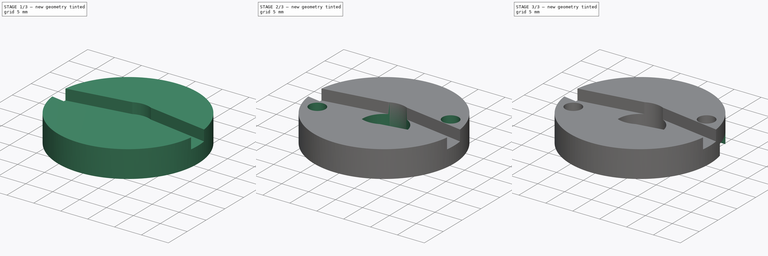
[diagram: build sequence overview — one tinted view per stage of 3, left to right]
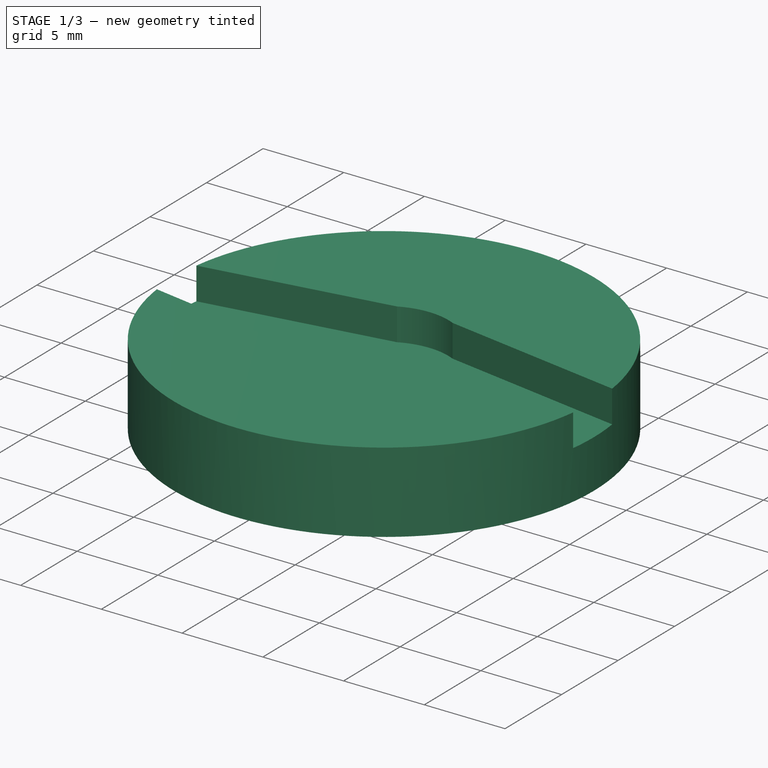
[diagram: stage 1 of 3 — iso view after this stage's code; geometry added in this stage tinted green]
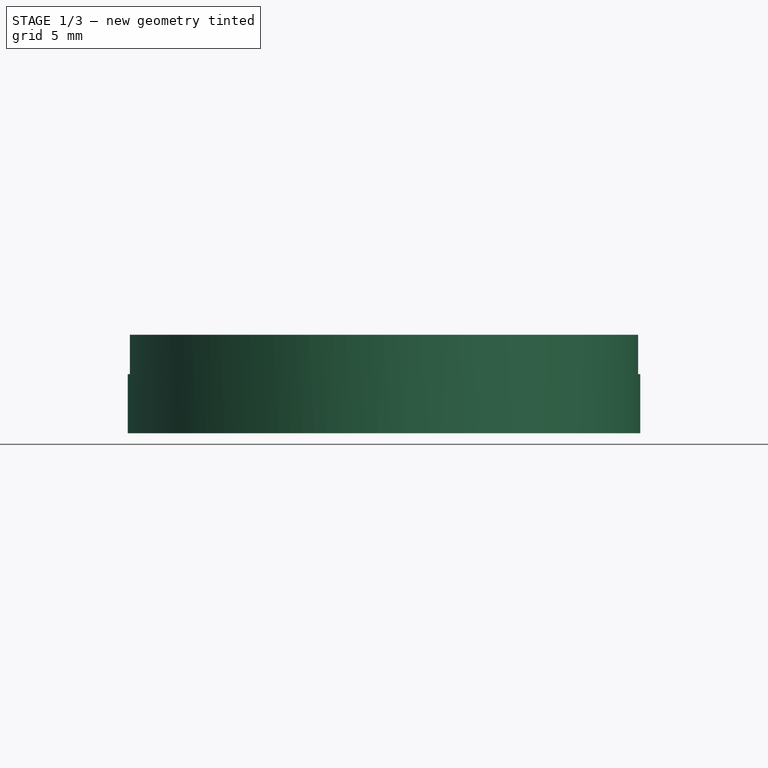
[diagram: stage 1 of 3 — front view after this stage's code; geometry added in this stage tinted green]
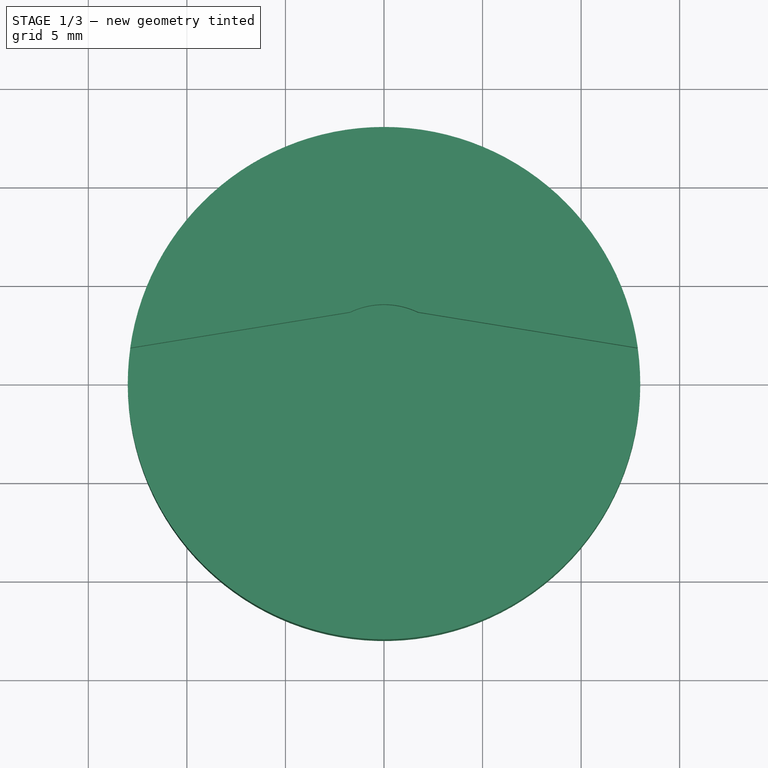
[diagram: stage 1 of 3 — top view after this stage's code; geometry added in this stage tinted green]
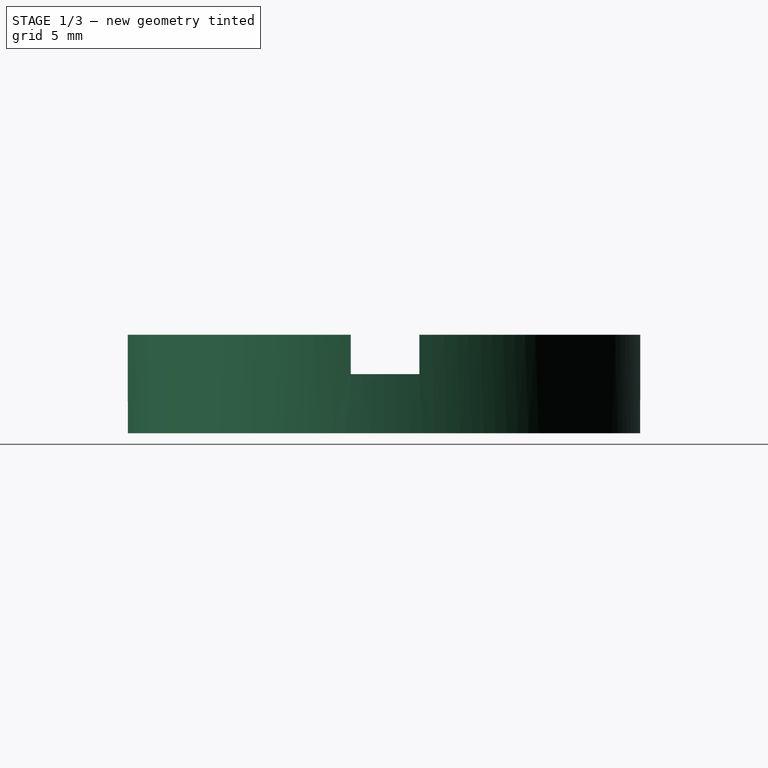
[diagram: stage 1 of 3 — right view after this stage's code; geometry added in this stage tinted green]
FCSTD DOCUMENT  (FreeCAD 0.14R3702 (Git))
Label: enganche-servo-pinza
License: CC-BY 3.0
LicenseURL: http://creativecommons.org/licenses/by/3.0/
objects: Sketcher::SketchObject×4, PartDesign::Pocket×4, Part::Cylinder×1, PartDesign::PolarPattern×1
note: 14 computed .brp shape members not serialized (recipe doc carries the construction recipe); baked Part::Feature solids carry a one-line shape summary decoded from their .brp

FEATURE [Part::Cylinder] Cylinder  label="cilindro-base"
  Angle = 360
  Height = 5
  Placement = pos=(0,0,1) rot=(0,0,1;0rad)
  Radius = 13
FEATURE [Sketcher::SketchObject] Sketch  label="sk-hueco-servo"
  Placement = pos=(0,0,6) rot=(0,0,1;0rad)
  Support = -> Cylinder [Face2]
  sketch-geometry (8):
    g0: ArcOfCircle CenterX=0 CenterY=0 CenterZ=0 NormalX=0 NormalY=0 NormalZ=1 Radius=4 StartAngle=1.12533 EndAngle=2.01626
    g1: ArcOfCircle CenterX=0 CenterY=0 CenterZ=0 NormalX=0 NormalY=0 NormalZ=1 Radius=4 StartAngle=4.26692 EndAngle=5.15785
    g2: ArcOfCircle CenterX=14.1826 CenterY=0.0611878 CenterZ=0 NormalX=0 NormalY=0 NormalZ=1 Radius=1.5 StartAngle=4.88317 EndAngle=7.69257
    g3: ArcOfCircle CenterX=-14.1826 CenterY=0.0611878 CenterZ=0 NormalX=0 NormalY=0 NormalZ=1 Radius=1.5 StartAngle=1.73221 EndAngle=4.54161
    g4: LineSegment StartX=-14.4237 StartY=1.54169 StartZ=0 EndX=-1.72351 EndY=3.60964 EndZ=0
    g5: LineSegment StartX=-14.4375 StartY=-1.41699 StartZ=0 EndX=-1.72351 EndY=-3.60964 EndZ=0
    g6: LineSegment StartX=1.72351 StartY=-3.60964 StartZ=0 EndX=14.4375 EndY=-1.41699 EndZ=0
    g7: LineSegment StartX=1.72351 StartY=3.60964 StartZ=0 EndX=14.4237 EndY=1.54169 EndZ=0
  constraints (20):
    c: Coincident(g0,g4)
    c: Coincident(g0,g7)
    c: Coincident(g1,g5)
    c: Coincident(g1,g6)
    c: Coincident(g3,g4)
    c: Coincident(g3,g5)
    c: Coincident(g2,g7)
    c: Coincident(g2,g6)
    c: Radius(g2) = 1.5
    c: Equal(g2,g3)
    c: Coincident(g0,g1)
    c: Coincident(g0,g-1)
    c: Radius(g0) = 4
    c: Symmetric(g0,g1,g-1)
    c: Symmetric(g2,g3,g-2)
    c: Symmetric(g2,g3,g-2)
    c: Tangent(g4,g3)
    c: Tangent(g6,g2)
    c: Symmetric(g0,g0,g-2)
    c: Symmetric(g1,g0,g-1)
FEATURE [PartDesign::Pocket] Pocket  label="pk-hueco-servo"
  Length = 2
  Placement = pos=(0,0,1) rot=(0,0,1;0rad)
  Sketch = -> Sketch
  Type = 0
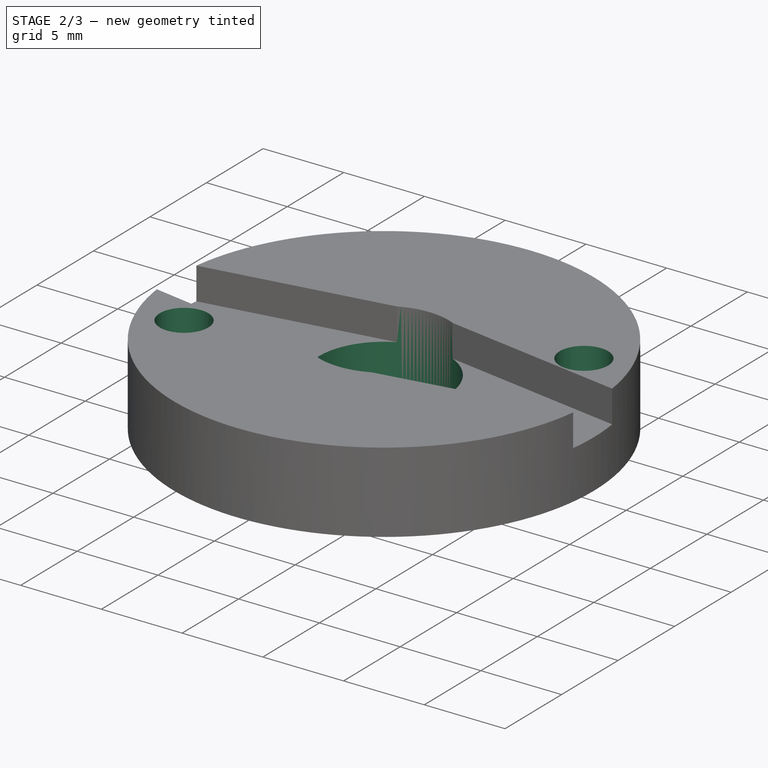
[diagram: stage 2 of 3 — iso view after this stage's code; geometry added in this stage tinted green]
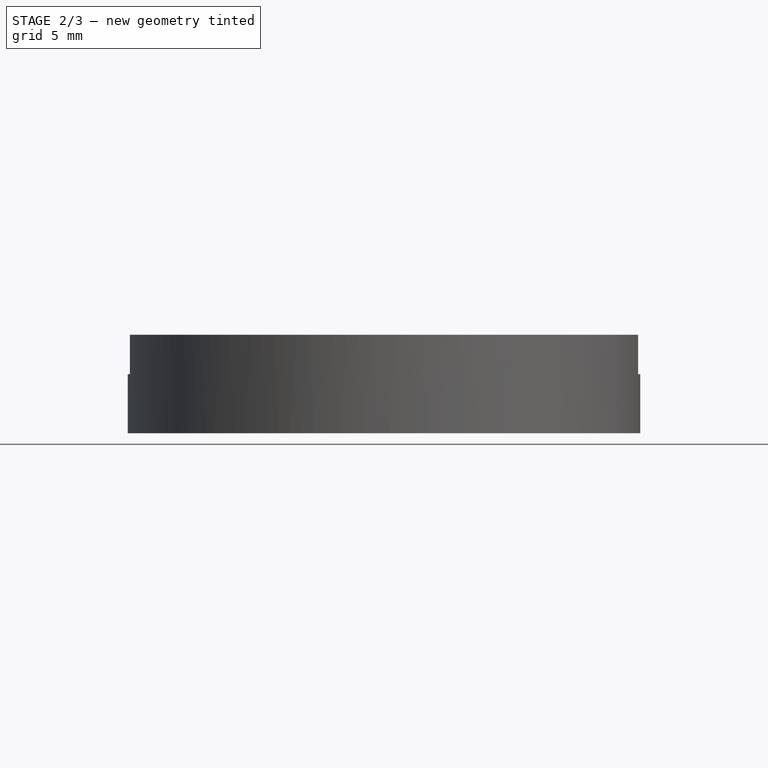
[diagram: stage 2 of 3 — front view after this stage's code; geometry added in this stage tinted green]
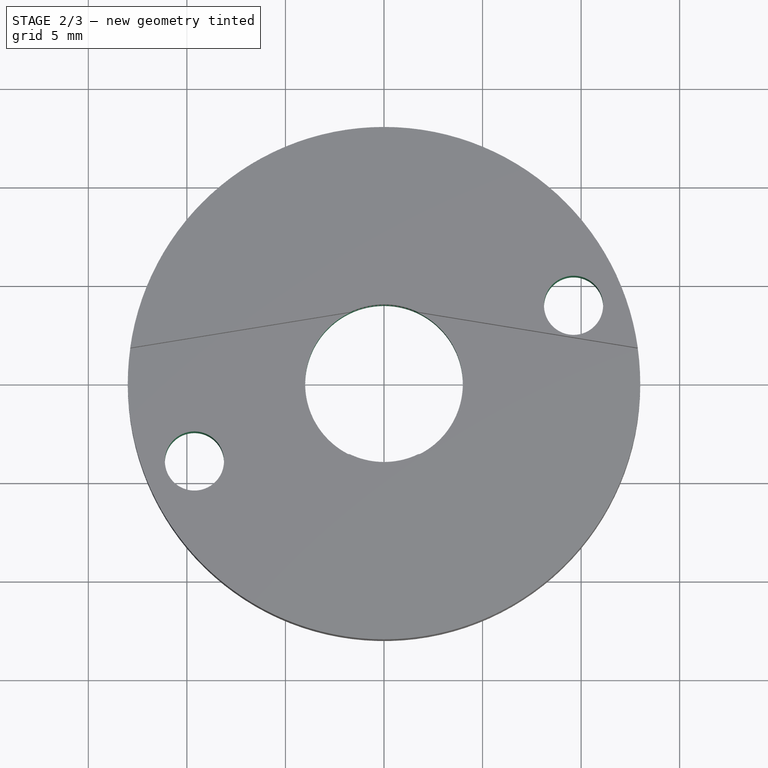
[diagram: stage 2 of 3 — top view after this stage's code; geometry added in this stage tinted green]
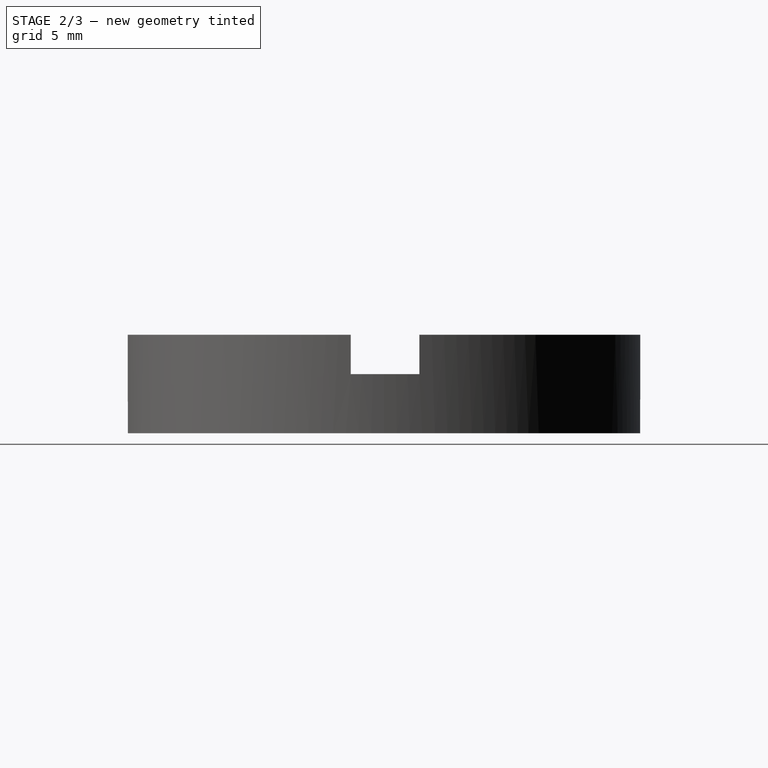
[diagram: stage 2 of 3 — right view after this stage's code; geometry added in this stage tinted green]
FEATURE [Sketcher::SketchObject] Sketch001  label="sk-agujero-central"
  Placement = pos=(0,0,6) rot=(0,0,1;0rad)
  Support = -> Pocket [Face2]
  sketch-geometry (1):
    g0: Circle CenterX=0 CenterY=0 CenterZ=0 NormalX=0 NormalY=0 NormalZ=1 Radius=4
  constraints (2):
    c: Radius(g0) = 4
    c: Coincident(g0,g-1)
FEATURE [PartDesign::Pocket] Pocket001  label="pk-agujero-central"
  Length = 5
  Placement = pos=(0,0,1) rot=(0,0,1;0rad)
  Sketch = -> Sketch001
  Type = 1
FEATURE [Sketcher::SketchObject] Sketch002  label="sk-tornillos"
  Placement = pos=(0,0,6) rot=(0,0,1;0rad)
  Support = -> Pocket001 [Face2]
  sketch-geometry (2):
    g0: Circle CenterX=-9.61703 CenterY=-3.94996 CenterZ=0 NormalX=0 NormalY=0 NormalZ=1 Radius=1.5
    g1: Circle CenterX=9.61703 CenterY=3.94996 CenterZ=0 NormalX=0 NormalY=0 NormalZ=1 Radius=1.5
  constraints (3):
    c: Radius(g0) = 1.5
    c: Equal(g1,g0)
    c: Symmetric(g0,g1,g-1)
FEATURE [PartDesign::Pocket] Pocket002  label="pk-tornillos"
  Length = 5
  Placement = pos=(0,0,1) rot=(0,0,1;0rad)
  Sketch = -> Sketch002
  Type = 1
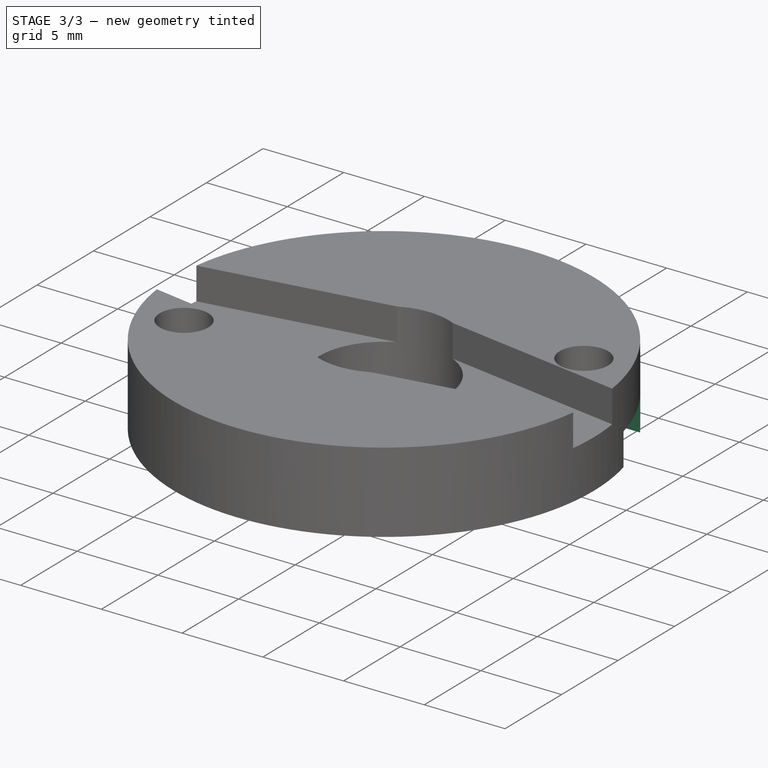
[diagram: stage 3 of 3 — iso view after this stage's code; geometry added in this stage tinted green]
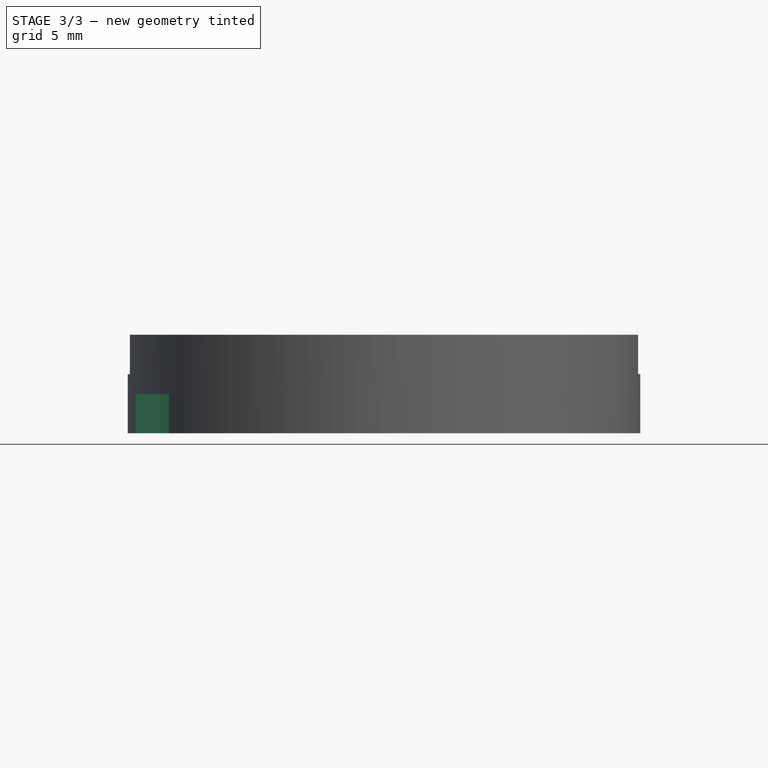
[diagram: stage 3 of 3 — front view after this stage's code; geometry added in this stage tinted green]
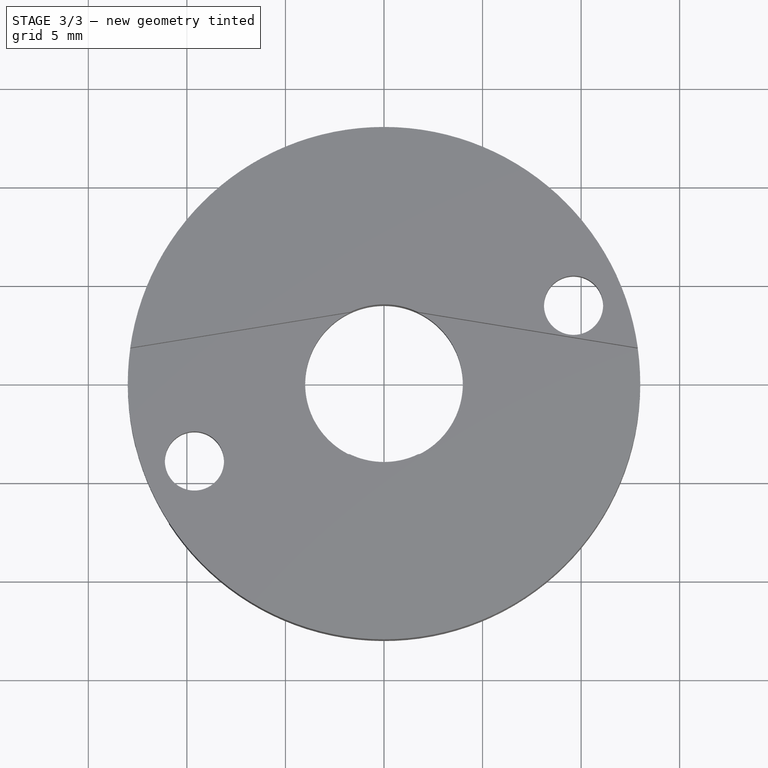
[diagram: stage 3 of 3 — top view after this stage's code; geometry added in this stage tinted green]
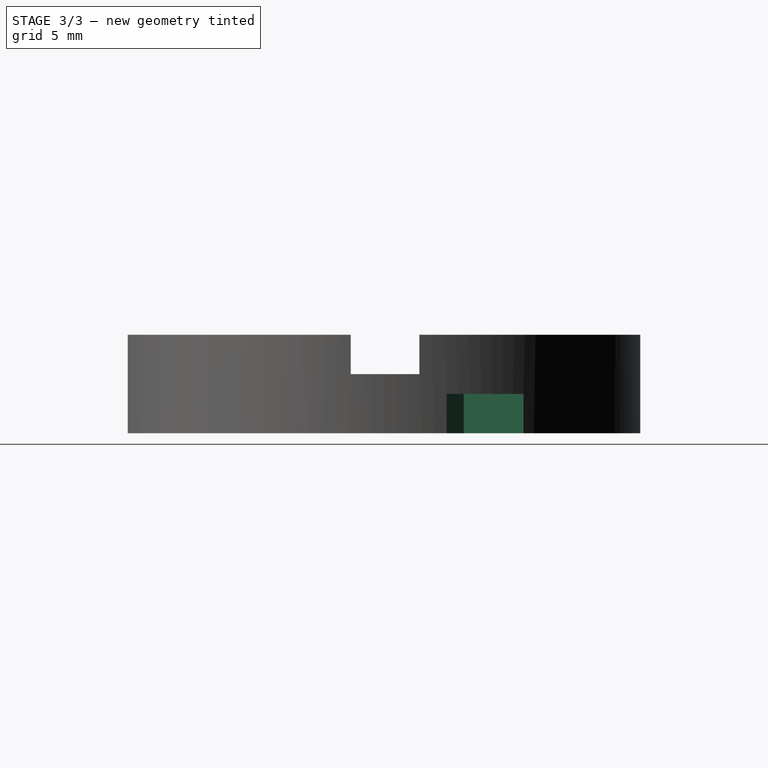
[diagram: stage 3 of 3 — right view after this stage's code; geometry added in this stage tinted green]
FEATURE [Sketcher::SketchObject] Sketch003  label="sk-tuerca"
  Placement = pos=(0,0,1) rot=(1,0,0;3.14159rad)
  Support = -> Pocket002 [Face9]
  sketch-geometry (6):
    g0: LineSegment StartX=-11.3548 StartY=7.07479 StartZ=0 EndX=-7.85481 EndY=7.07479 EndZ=0
    g1: LineSegment StartX=-7.85481 StartY=7.07479 StartZ=0 EndX=-6.10481 EndY=4.0437 EndZ=0
    g2: LineSegment StartX=-6.10481 StartY=4.0437 StartZ=0 EndX=-7.85481 EndY=1.01262 EndZ=0
    g3: LineSegment StartX=-7.85481 StartY=1.01262 StartZ=0 EndX=-11.3548 EndY=1.01262 EndZ=0
    g4: LineSegment StartX=-11.3548 StartY=1.01262 StartZ=0 EndX=-13.1048 EndY=4.0437 EndZ=0
    g5: LineSegment StartX=-13.1048 StartY=4.0437 StartZ=0 EndX=-11.3548 EndY=7.07479 EndZ=0
  constraints (16):
    c: Coincident(g0,g1)
    c: Coincident(g1,g2)
    c: Coincident(g2,g3)
    c: Coincident(g3,g4)
    c: Coincident(g4,g5)
    c: Coincident(g5,g0)
    c: Equal(g3,g2)
    c: Equal(g2,g1)
    c: Equal(g1,g0)
    c: Equal(g0,g5)
    c: Equal(g5,g4)
    c: Angle(g2,g3) = 2.0944
    c: Angle(g4,g5) = 2.0944
    c: Angle(g0,g1) = 2.0944
    c: Horizontal(g0)
    c: DistanceX(g3) = -3.5
FEATURE [PartDesign::Pocket] Pocket003  label="pk-tuerca001"
  Length = 2
  Placement = pos=(0,0,1) rot=(0,0,1;0rad)
  Sketch = -> Sketch003
  Type = 0
FEATURE [PartDesign::PolarPattern] PolarPattern  label="enganche-servo-pinza"
  Angle = 360
  Axis = -> Sketch003 [N_Axis]
  Occurrences = 2
  Originals = -> [Pocket003]
  Placement = pos=(0,0,1) rot=(0,0,1;0rad)
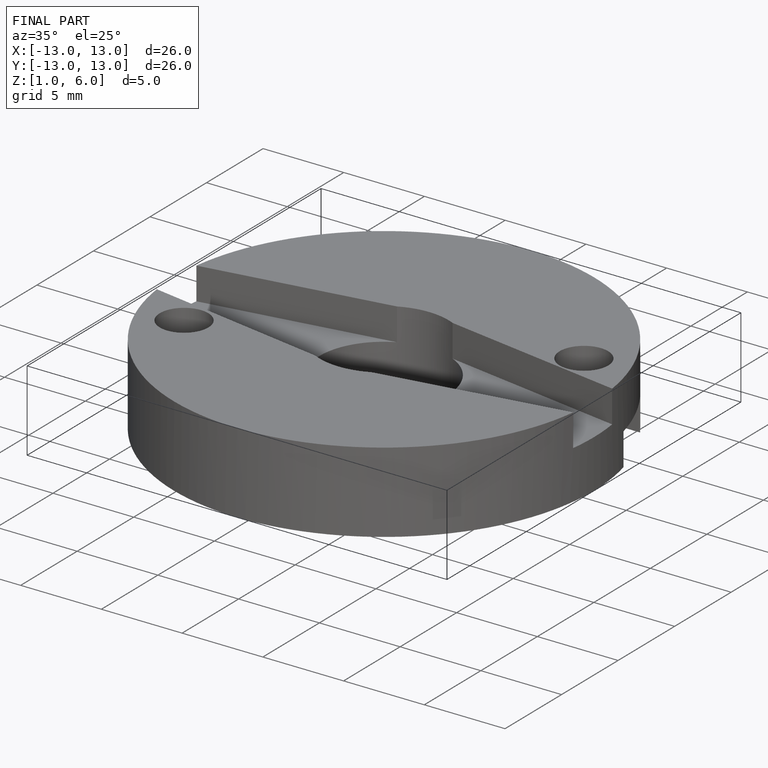
[diagram: finished part — iso view with bounding-box wireframe]
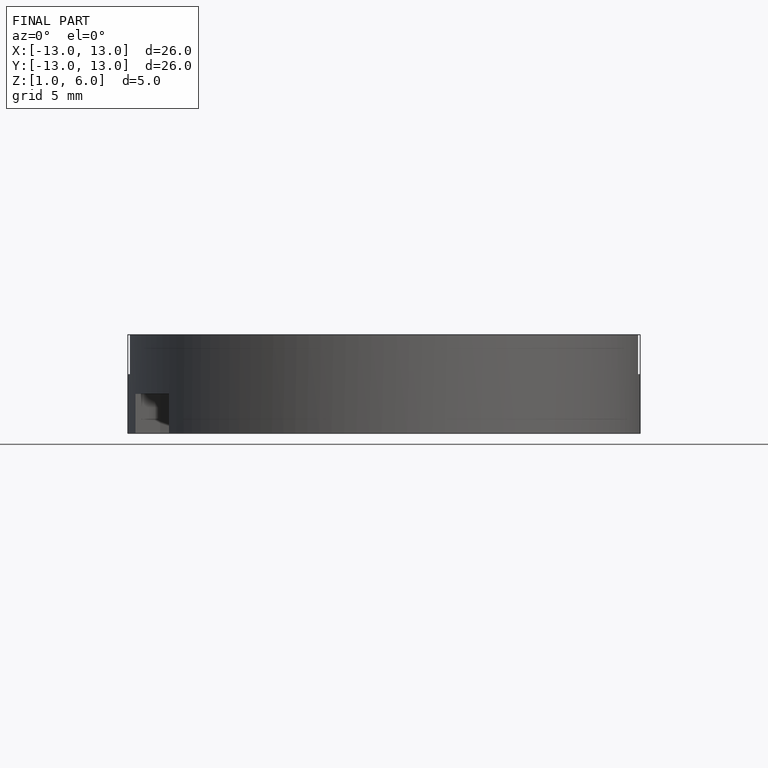
[diagram: finished part — front view with bounding-box wireframe]
